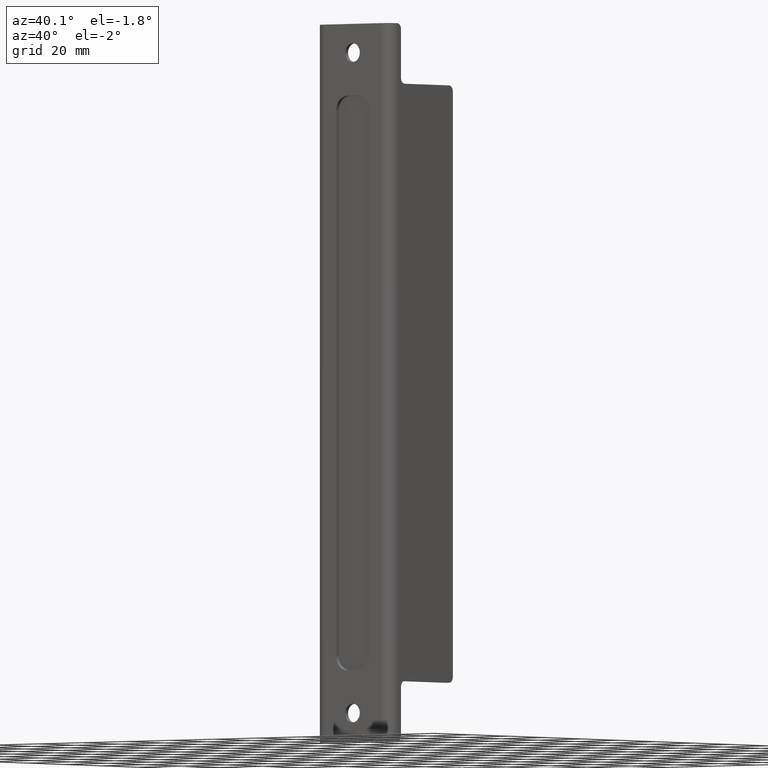
[diagram: clean part render]
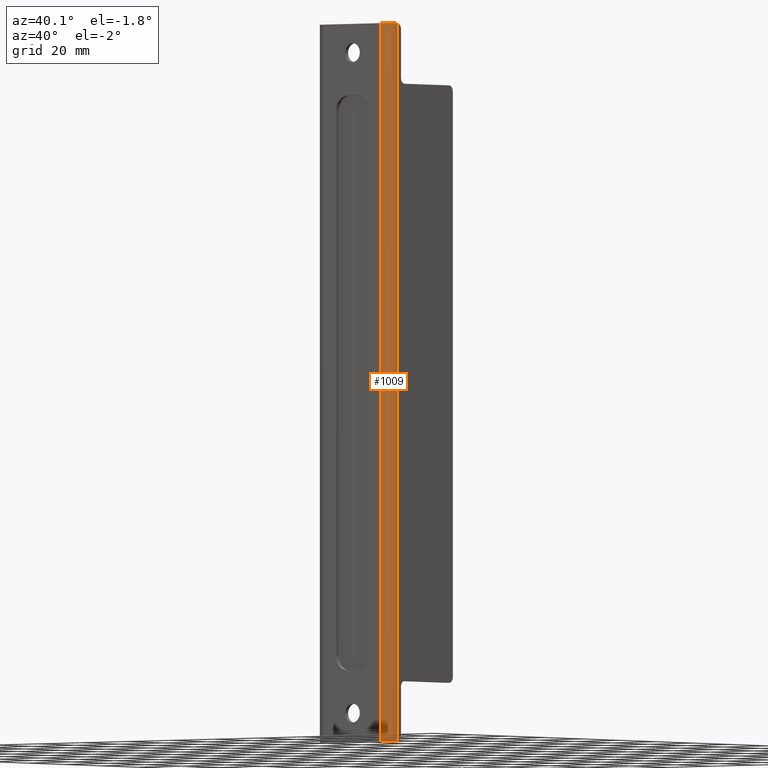
[diagram: same view with one face highlighted and labeled with its STEP entity id]
A machine part, auxiliary view. The second image highlights one B-rep face of the part: STEP entity #1009.
In plain terms, the highlighted cylindrical surface (edge-blend (fillet) strip) has radius 4 mm, axis along (0, 0, -1).
Its self-contained STEP definition (entity closure, byte-faithful):
#37=CYLINDRICAL_SURFACE('',#1125,3.99999999999999);
#94=CIRCLE('',#1126,3.99999999999999);
#95=CIRCLE('',#1127,3.99999999999999);
#302=ORIENTED_EDGE('',*,*,#508,.T.);
#303=ORIENTED_EDGE('',*,*,#415,.T.);
#304=ORIENTED_EDGE('',*,*,#509,.F.);
#305=ORIENTED_EDGE('',*,*,#510,.F.);
#415=EDGE_CURVE('',#560,#558,#645,.T.);
#508=EDGE_CURVE('',#618,#560,#94,.T.);
#509=EDGE_CURVE('',#619,#558,#95,.T.);
#510=EDGE_CURVE('',#618,#619,#702,.T.);
#558=VERTEX_POINT('',#1521);
#560=VERTEX_POINT('',#1524);
#618=VERTEX_POINT('',#1709);
#619=VERTEX_POINT('',#1711);
#645=LINE('',#1523,#733);
#702=LINE('',#1712,#790);
#733=VECTOR('',#1197,1000.);
#790=VECTOR('',#1398,1000.);
#853=EDGE_LOOP('',(#302,#303,#304,#305));
#921=FACE_BOUND('',#853,.T.);
#1009=ADVANCED_FACE('',(#921),#37,.T.);
#1125=AXIS2_PLACEMENT_3D('',#1707,#1392,#1393);
#1126=AXIS2_PLACEMENT_3D('',#1708,#1394,#1395);
#1127=AXIS2_PLACEMENT_3D('',#1710,#1396,#1397);
#1197=DIRECTION('',(-3.43749899352818E-17,1.66533453693773E-16,-1.));
#1392=DIRECTION('',(8.93686180177302E-17,1.66533453693773E-16,-1.));
#1393=DIRECTION('',(4.06163832661068E-16,1.,1.66533453693773E-16));
#1394=DIRECTION('',(8.93686180177302E-17,1.66533453693773E-16,-1.));
#1395=DIRECTION('',(4.06163832661068E-16,1.,1.66533453693773E-16));
#1396=DIRECTION('',(8.93686180177302E-17,1.66533453693773E-16,-1.));
#1397=DIRECTION('',(4.06163832661068E-16,1.,1.66533453693773E-16));
#1398=DIRECTION('',(8.93686180177302E-17,1.31838984174237E-16,-1.));
#1521=CARTESIAN_POINT('',(13.0000000000001,-34.0130367319025,-125.));
#1523=CARTESIAN_POINT('',(13.0000000000001,-34.0130367319026,375.));
#1524=CARTESIAN_POINT('',(13.,-34.0130367319026,125.));
#1707=CARTESIAN_POINT('',(13.0000000000001,-30.0130367319025,-375.));
#1708=CARTESIAN_POINT('',(13.,-30.0130367319026,125.));
#1709=CARTESIAN_POINT('',(17.,-30.0130367319026,125.));
#1710=CARTESIAN_POINT('',(13.0000000000001,-30.0130367319026,-125.));
#1711=CARTESIAN_POINT('',(17.0000000000001,-30.0130367319026,-125.));
#1712=CARTESIAN_POINT('',(17.,-30.0130367319026,-1.92994200509913E-15));